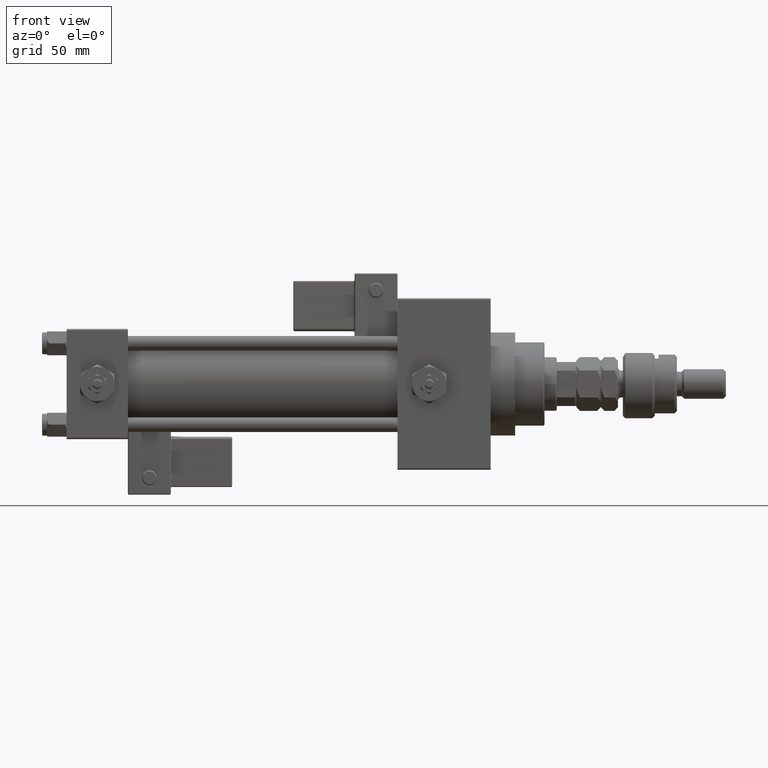
[diagram: clean part render]
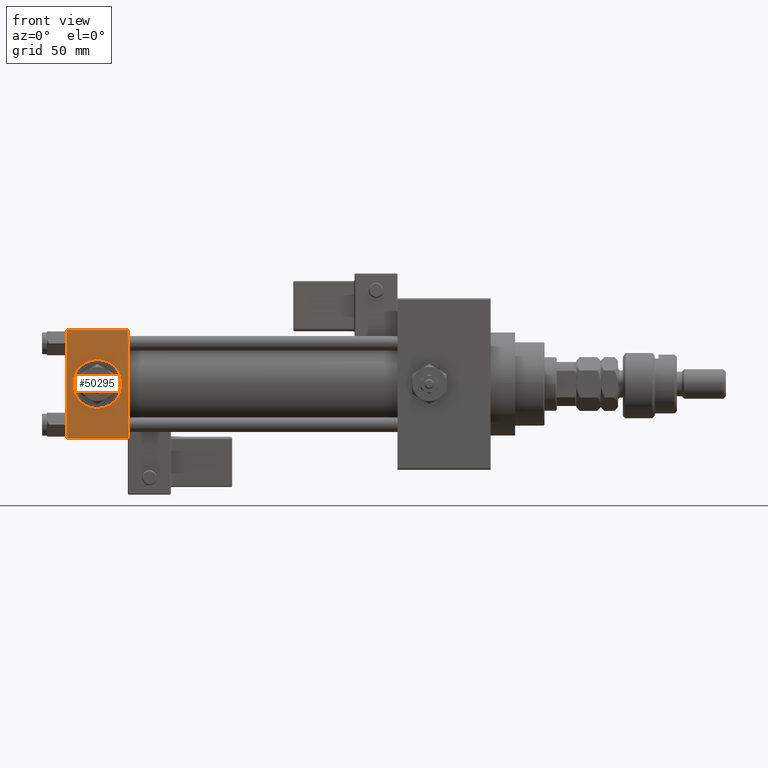
[diagram: same view with one face highlighted and labeled with its STEP entity id]
A machine part, front view. The second image highlights one B-rep face of the part: STEP entity #50295.
In plain terms, the highlighted planar face has unit normal (0, 1, 0).
Its self-contained STEP definition (entity closure, byte-faithful):
#786 = DIRECTION ( 'NONE',  ( 0.000000000000000000, 0.000000000000000000, -1.000000000000000000 ) ) ;
#1468 = VERTEX_POINT ( 'NONE', #18497 ) ;
#1697 = EDGE_CURVE ( 'NONE', #1468, #11070, #14312, .T. ) ;
#2766 = LINE ( 'NONE', #40632, #47287 ) ;
#2908 = VERTEX_POINT ( 'NONE', #4928 ) ;
#4928 = CARTESIAN_POINT ( 'NONE',  ( 12.50000000000000178, -22.50000000000000000, 9.999999999999996447 ) ) ;
#5272 = AXIS2_PLACEMENT_3D ( 'NONE', #27407, #19446, #32329 ) ;
#5450 = VERTEX_POINT ( 'NONE', #7620 ) ;
#5854 = VECTOR ( 'NONE', #43759, 1000.000000000000000 ) ;
#7620 = CARTESIAN_POINT ( 'NONE',  ( 25.00000000000000000, -22.50000000000000000, -21.99999999999997158 ) ) ;
#7884 = LINE ( 'NONE', #16945, #19594 ) ;
#10384 = AXIS2_PLACEMENT_3D ( 'NONE', #42491, #42757, #786 ) ;
#11070 = VERTEX_POINT ( 'NONE', #44607 ) ;
#12896 = AXIS2_PLACEMENT_3D ( 'NONE', #19819, #45822, #49117 ) ;
#14312 = LINE ( 'NONE', #27217, #17066 ) ;
#16401 = EDGE_CURVE ( 'NONE', #49175, #5450, #2766, .T. ) ;
#16507 = PLANE ( 'NONE',  #12896 ) ;
#16945 = CARTESIAN_POINT ( 'NONE',  ( 25.00000000000000000, -22.50000000000000000, -21.99999999999998579 ) ) ;
#17066 = VECTOR ( 'NONE', #43913, 1000.000000000000000 ) ;
#18360 = EDGE_LOOP ( 'NONE', ( #21411, #25702 ) ) ;
#18497 = CARTESIAN_POINT ( 'NONE',  ( 0.000000000000000000, -22.50000000000000000, 22.00000000000000000 ) ) ;
#18712 = DIRECTION ( 'NONE',  ( 0.000000000000000000, 0.000000000000000000, -1.000000000000000000 ) ) ;
#19446 = DIRECTION ( 'NONE',  ( 0.000000000000000000, -1.000000000000000000, -8.673617379884036705E-17 ) ) ;
#19594 = VECTOR ( 'NONE', #24900, 1000.000000000000000 ) ;
#19819 = CARTESIAN_POINT ( 'NONE',  ( 25.00000000000000000, -22.50000000000000000, 22.50000000000000000 ) ) ;
#21411 = ORIENTED_EDGE ( 'NONE', *, *, #43942, .F. ) ;
#23487 = LINE ( 'NONE', #40201, #5854 ) ;
#24900 = DIRECTION ( 'NONE',  ( 1.000000000000000000, 0.000000000000000000, 0.000000000000000000 ) ) ;
#25702 = ORIENTED_EDGE ( 'NONE', *, *, #52459, .F. ) ;
#26640 = ORIENTED_EDGE ( 'NONE', *, *, #26678, .T. ) ;
#26678 = EDGE_CURVE ( 'NONE', #11070, #5450, #7884, .T. ) ;
#27217 = CARTESIAN_POINT ( 'NONE',  ( 0.000000000000000000, -22.50000000000000000, 22.50000000000000000 ) ) ;
#27407 = CARTESIAN_POINT ( 'NONE',  ( 12.50000000000000000, -22.50000000000000000, 0.000000000000000000 ) ) ;
#27976 = CARTESIAN_POINT ( 'NONE',  ( 12.50000000000000000, -22.50000000000000000, -9.999999999999996447 ) ) ;
#30426 = CARTESIAN_POINT ( 'NONE',  ( 25.00000000000000000, -22.50000000000000000, 22.00000000000000000 ) ) ;
#31831 = VERTEX_POINT ( 'NONE', #27976 ) ;
#32128 = ORIENTED_EDGE ( 'NONE', *, *, #16401, .F. ) ;
#32329 = DIRECTION ( 'NONE',  ( 0.000000000000000000, 0.000000000000000000, -1.000000000000000000 ) ) ;
#38750 = ORIENTED_EDGE ( 'NONE', *, *, #1697, .T. ) ;
#40201 = CARTESIAN_POINT ( 'NONE',  ( 25.00000000000000000, -22.50000000000000000, 22.00000000000000000 ) ) ;
#40632 = CARTESIAN_POINT ( 'NONE',  ( 25.00000000000000000, -22.50000000000000000, 22.50000000000000000 ) ) ;
#40911 = FACE_BOUND ( 'NONE', #18360, .T. ) ;
#41142 = EDGE_LOOP ( 'NONE', ( #38750, #26640, #32128, #44416 ) ) ;
#42491 = CARTESIAN_POINT ( 'NONE',  ( 12.50000000000000000, -22.50000000000000000, 0.000000000000000000 ) ) ;
#42757 = DIRECTION ( 'NONE',  ( 0.000000000000000000, -1.000000000000000000, -8.673617379884036705E-17 ) ) ;
#43759 = DIRECTION ( 'NONE',  ( -1.000000000000000000, 0.000000000000000000, 0.000000000000000000 ) ) ;
#43913 = DIRECTION ( 'NONE',  ( 0.000000000000000000, 0.000000000000000000, -1.000000000000000000 ) ) ;
#43942 = EDGE_CURVE ( 'NONE', #31831, #2908, #44661, .T. ) ;
#44416 = ORIENTED_EDGE ( 'NONE', *, *, #49697, .T. ) ;
#44607 = CARTESIAN_POINT ( 'NONE',  ( 0.000000000000000000, -22.50000000000000000, -21.99999999999997158 ) ) ;
#44661 = CIRCLE ( 'NONE', #5272, 9.999999999999996447 ) ;
#45557 = FACE_OUTER_BOUND ( 'NONE', #41142, .T. ) ;
#45822 = DIRECTION ( 'NONE',  ( -0.000000000000000000, 1.000000000000000000, 0.000000000000000000 ) ) ;
#47287 = VECTOR ( 'NONE', #18712, 1000.000000000000000 ) ;
#49117 = DIRECTION ( 'NONE',  ( 0.000000000000000000, -0.000000000000000000, 1.000000000000000000 ) ) ;
#49175 = VERTEX_POINT ( 'NONE', #30426 ) ;
#49697 = EDGE_CURVE ( 'NONE', #49175, #1468, #23487, .T. ) ;
#50295 = ADVANCED_FACE ( 'NONE', ( #40911, #45557 ), #16507, .F. ) ;
#51539 = CIRCLE ( 'NONE', #10384, 9.999999999999996447 ) ;
#52459 = EDGE_CURVE ( 'NONE', #2908, #31831, #51539, .T. ) ;